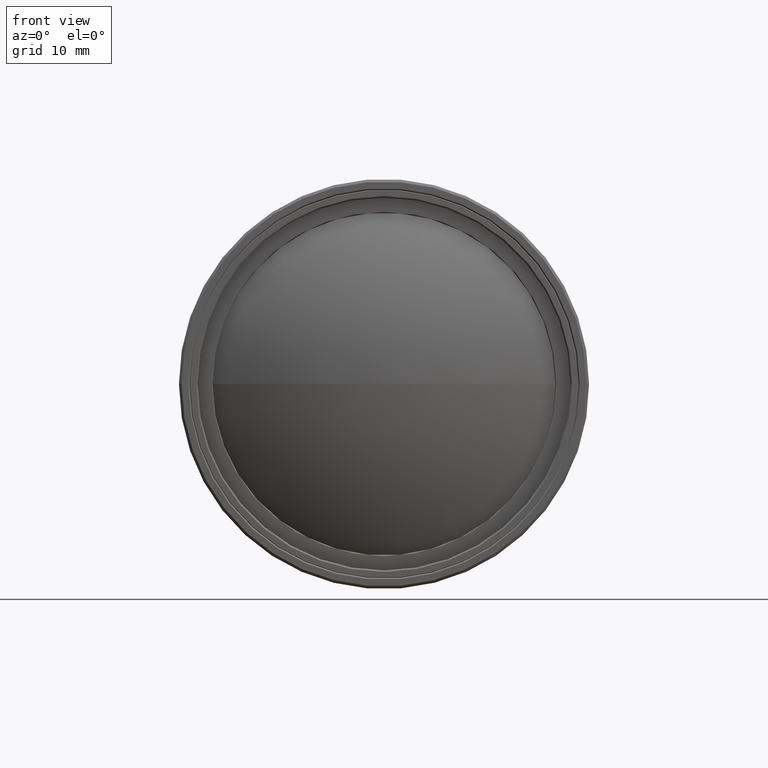
[diagram: clean part render]
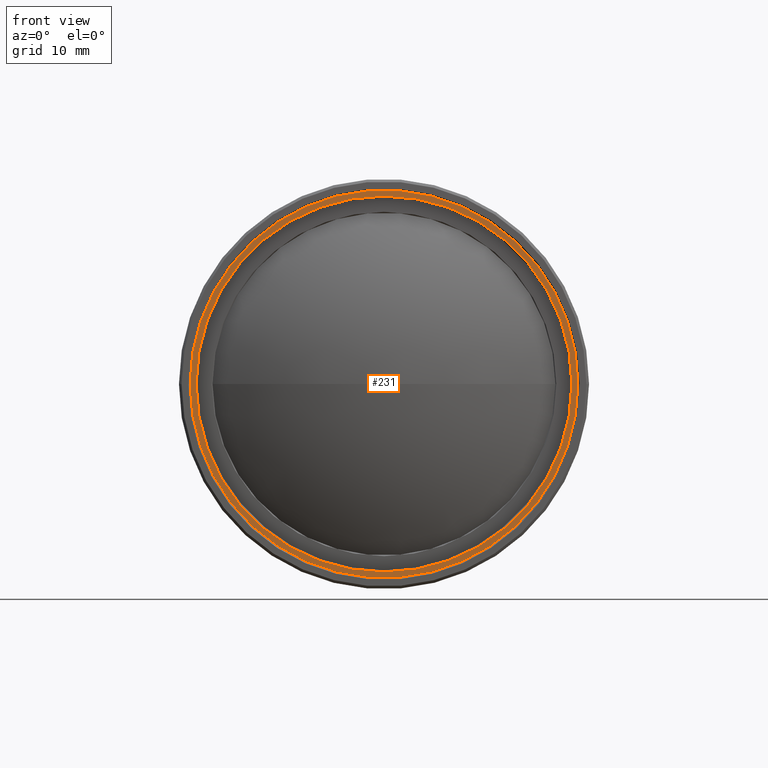
[diagram: same view with one face highlighted and labeled with its STEP entity id]
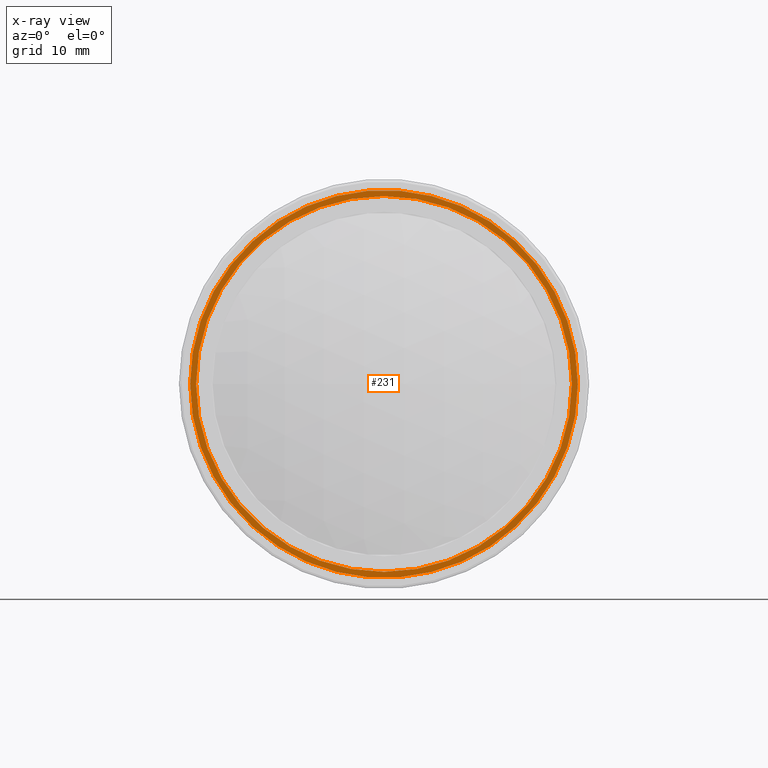
[diagram: x-ray of the same camera — body ghosted, the highlighted face saturated]
A machine part, front view. The second image highlights one B-rep face of the part: STEP entity #231.
The next image is the same camera in x-ray: the body ghosted, the highlighted face saturated — about 0% of this face is hidden behind the body in this view.
In plain terms, the highlighted planar face has unit normal (0, -1, 0).
Its self-contained STEP definition (entity closure, byte-faithful):
#231=ADVANCED_FACE('0:9364',(#664,#665),#666,.T.);
#664=FACE_OUTER_BOUND('',#1317,.T.);
#665=FACE_BOUND('',#1318,.T.);
#666=PLANE('',#1319);
#1317=EDGE_LOOP('',(#2645,#2646));
#1318=EDGE_LOOP('',(#2647,#2648));
#1319=AXIS2_PLACEMENT_3D('',#2649,#2650,#2651);
#2645=ORIENTED_EDGE('',*,*,#4270,.T.);
#2646=ORIENTED_EDGE('',*,*,#4226,.T.);
#2647=ORIENTED_EDGE('',*,*,#4230,.F.);
#2648=ORIENTED_EDGE('',*,*,#4269,.F.);
#2649=CARTESIAN_POINT('',(0.0256000000000001,-0.0249674880259019,0.0));
#2650=DIRECTION('',(3.26943875618435E-15,-1.0,0.0));
#2651=DIRECTION('',(0.0,0.0,1.0));
#4226=EDGE_CURVE('0:9406',#5234,#5232,#5235,.T.);
#4230=EDGE_CURVE('0:9403',#5238,#5241,#5242,.T.);
#4269=EDGE_CURVE('0:9403',#5241,#5238,#5300,.T.);
#4270=EDGE_CURVE('0:9406',#5232,#5234,#5301,.T.);
#5232=VERTEX_POINT('NONE',#6956);
#5234=VERTEX_POINT('',#6959);
#5235=CIRCLE('',#6960,0.026);
#5238=VERTEX_POINT('NONE',#6964);
#5241=VERTEX_POINT('',#6968);
#5242=CIRCLE('',#6969,0.0252);
#5300=CIRCLE('',#7042,0.0252);
#5301=CIRCLE('',#7043,0.026);
#6956=CARTESIAN_POINT('',(0.0260000000000001,-0.0249674880259019,0.0));
#6959=CARTESIAN_POINT('',(-0.0259999999999999,-0.024967488025902,3.18408167778312E-18));
#6960=AXIS2_PLACEMENT_3D('',#8203,#8204,#8205);
#6964=CARTESIAN_POINT('',(0.0252,-0.0249674880259019,0.0));
#6968=CARTESIAN_POINT('',(-0.0251999999999999,-0.024967488025902,-3.08610993385133E-18));
#6969=AXIS2_PLACEMENT_3D('',#8211,#8212,#8213);
#7042=AXIS2_PLACEMENT_3D('',#8298,#8299,#8300);
#7043=AXIS2_PLACEMENT_3D('',#8301,#8302,#8303);
#8203=CARTESIAN_POINT('',(8.32667268468867E-17,-0.024967488025902,0.0));
#8204=DIRECTION('',(3.26943875618435E-15,-1.0,0.0));
#8205=DIRECTION('',(1.0,3.26943875618435E-15,0.0));
#8211=CARTESIAN_POINT('',(8.32667268468867E-17,-0.024967488025902,0.0));
#8212=DIRECTION('',(3.26943875618435E-15,-1.0,0.0));
#8213=DIRECTION('',(1.0,3.26943875618435E-15,0.0));
#8298=CARTESIAN_POINT('',(8.32667268468867E-17,-0.024967488025902,0.0));
#8299=DIRECTION('',(3.26943875618435E-15,-1.0,0.0));
#8300=DIRECTION('',(1.0,3.26943875618435E-15,0.0));
#8301=CARTESIAN_POINT('',(8.32667268468867E-17,-0.024967488025902,0.0));
#8302=DIRECTION('',(3.26943875618435E-15,-1.0,0.0));
#8303=DIRECTION('',(1.0,3.26943875618435E-15,0.0));